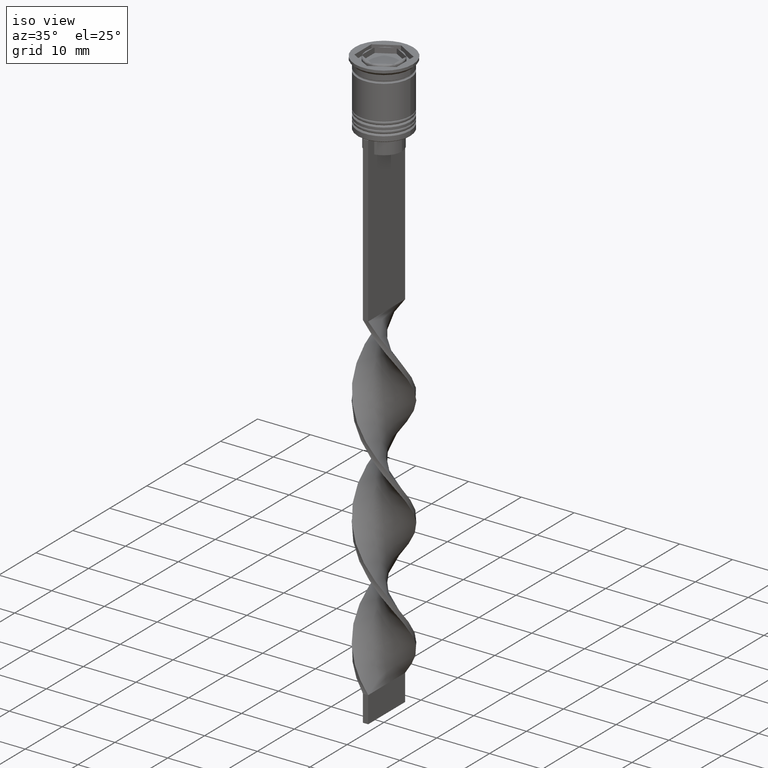
[diagram: clean part render]
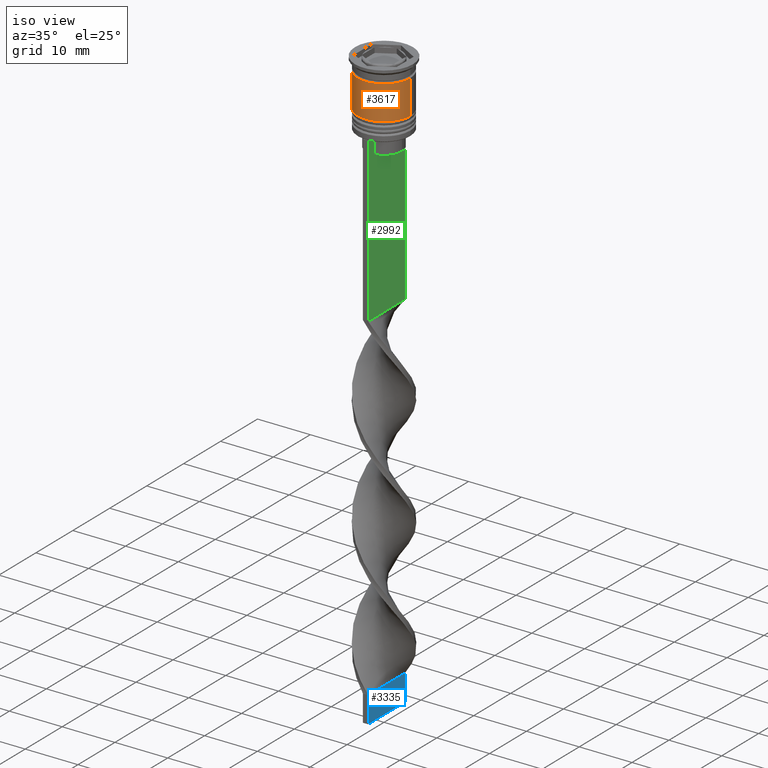
[diagram: same view with three faces highlighted in distinct colors, each labeled with its STEP entity id]
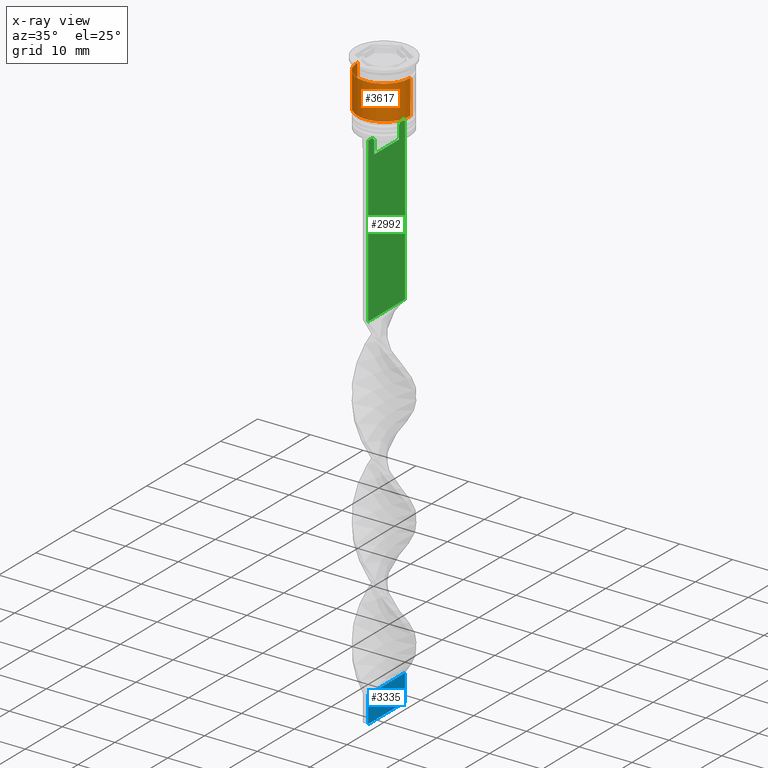
[diagram: x-ray of the same camera — body ghosted, the three highlighted faces saturated]
A machine part, iso view with three faces highlighted in distinct colors.
The next image is the same camera in x-ray (body ghosted, the three faces saturated) — at least one of them is partly hidden behind the body in this view.
Their STEP definitions:

[orange] entity #3617 — the highlighted cylindrical surface (edge-blend (fillet) strip) has radius 5 mm, axis along (-0, -0, 1).
#20 = AXIS2_PLACEMENT_3D ( 'NONE', #622, #349, #1485 ) ;
#21 = CARTESIAN_POINT ( 'NONE',  ( 0.000000000000000000, 0.000000000000000000, -9.000000000000001776 ) ) ;
#48 = CIRCLE ( 'NONE', #3082, 5.000000000000000888 ) ;
#119 = VERTEX_POINT ( 'NONE', #2237 ) ;
#310 = CIRCLE ( 'NONE', #20, 4.999999999999999112 ) ;
#349 = DIRECTION ( 'NONE',  ( -0.000000000000000000, -0.000000000000000000, 1.000000000000000000 ) ) ;
#367 = VECTOR ( 'NONE', #899, 1000.000000000000000 ) ;
#530 = DIRECTION ( 'NONE',  ( -0.000000000000000000, -0.000000000000000000, 1.000000000000000000 ) ) ;
#543 = LINE ( 'NONE', #2847, #367 ) ;
#545 = EDGE_CURVE ( 'NONE', #1499, #3250, #310, .T. ) ;
#563 = DIRECTION ( 'NONE',  ( 1.000000000000000000, 0.000000000000000000, 0.000000000000000000 ) ) ;
#622 = CARTESIAN_POINT ( 'NONE',  ( 0.000000000000000000, 0.000000000000000000, -2.500000000000000000 ) ) ;
#643 = EDGE_LOOP ( 'NONE', ( #2131, #2578, #2330, #1938 ) ) ;
#802 = CARTESIAN_POINT ( 'NONE',  ( 5.000000000000000888, 0.000000000000000000, -9.000000000000001776 ) ) ;
#878 = FACE_OUTER_BOUND ( 'NONE', #643, .T. ) ;
#899 = DIRECTION ( 'NONE',  ( -0.000000000000000000, -0.000000000000000000, 1.000000000000000000 ) ) ;
#999 = CARTESIAN_POINT ( 'NONE',  ( 4.999999999999999112, 0.000000000000000000, -2.500000000000000000 ) ) ;
#1013 = EDGE_CURVE ( 'NONE', #1340, #3250, #543, .T. ) ;
#1124 = CARTESIAN_POINT ( 'NONE',  ( -4.999999999999999112, 6.123233995736766282E-16, -2.500000000000000000 ) ) ;
#1290 = VECTOR ( 'NONE', #530, 1000.000000000000000 ) ;
#1294 = EDGE_CURVE ( 'NONE', #119, #1499, #1330, .T. ) ;
#1330 = LINE ( 'NONE', #3394, #1290 ) ;
#1340 = VERTEX_POINT ( 'NONE', #802 ) ;
#1475 = AXIS2_PLACEMENT_3D ( 'NONE', #2601, #1481, #3429 ) ;
#1481 = DIRECTION ( 'NONE',  ( -0.000000000000000000, -0.000000000000000000, 1.000000000000000000 ) ) ;
#1485 = DIRECTION ( 'NONE',  ( 1.000000000000000000, 0.000000000000000000, 0.000000000000000000 ) ) ;
#1499 = VERTEX_POINT ( 'NONE', #1124 ) ;
#1938 = ORIENTED_EDGE ( 'NONE', *, *, #545, .F. ) ;
#2131 = ORIENTED_EDGE ( 'NONE', *, *, #1294, .F. ) ;
#2237 = CARTESIAN_POINT ( 'NONE',  ( -5.000000000000000888, 6.123233995736767268E-16, -9.000000000000001776 ) ) ;
#2330 = ORIENTED_EDGE ( 'NONE', *, *, #1013, .T. ) ;
#2578 = ORIENTED_EDGE ( 'NONE', *, *, #2637, .T. ) ;
#2601 = CARTESIAN_POINT ( 'NONE',  ( 0.000000000000000000, 0.000000000000000000, 0.000000000000000000 ) ) ;
#2637 = EDGE_CURVE ( 'NONE', #119, #1340, #48, .T. ) ;
#2827 = DIRECTION ( 'NONE',  ( -0.000000000000000000, -0.000000000000000000, 1.000000000000000000 ) ) ;
#2847 = CARTESIAN_POINT ( 'NONE',  ( 5.000000000000000000, 0.000000000000000000, 0.000000000000000000 ) ) ;
#3082 = AXIS2_PLACEMENT_3D ( 'NONE', #21, #2827, #563 ) ;
#3173 = CYLINDRICAL_SURFACE ( 'NONE', #1475, 5.000000000000000000 ) ;
#3250 = VERTEX_POINT ( 'NONE', #999 ) ;
#3394 = CARTESIAN_POINT ( 'NONE',  ( -5.000000000000000000, 6.123233995736766282E-16, 0.000000000000000000 ) ) ;
#3429 = DIRECTION ( 'NONE',  ( 1.000000000000000000, 0.000000000000000000, 0.000000000000000000 ) ) ;
#3617 = ADVANCED_FACE ( 'NONE', ( #878 ), #3173, .T. ) ;

[blue] entity #3335 — the highlighted planar face has unit normal (-1, 0, 0).
#127 = EDGE_CURVE ( 'NONE', #2539, #2445, #1893, .T. ) ;
#189 = ORIENTED_EDGE ( 'NONE', *, *, #281, .T. ) ;
#247 = DIRECTION ( 'NONE',  ( -1.000000000000000000, 1.301042606982605321E-16, 0.000000000000000000 ) ) ;
#259 = CARTESIAN_POINT ( 'NONE',  ( 0.4999999999999993339, -5.000000000000000888, -112.5000000000000000 ) ) ;
#281 = EDGE_CURVE ( 'NONE', #2539, #1031, #3440, .T. ) ;
#749 = CARTESIAN_POINT ( 'NONE',  ( 0.5000000000000006661, 4.999999999999999112, -107.5000000000000000 ) ) ;
#762 = CARTESIAN_POINT ( 'NONE',  ( 0.5000000000000006661, 4.999999999999999112, -112.5000000000000000 ) ) ;
#799 = AXIS2_PLACEMENT_3D ( 'NONE', #3071, #247, #3350 ) ;
#981 = ORIENTED_EDGE ( 'NONE', *, *, #2103, .T. ) ;
#1031 = VERTEX_POINT ( 'NONE', #1119 ) ;
#1033 = FACE_OUTER_BOUND ( 'NONE', #3449, .T. ) ;
#1119 = CARTESIAN_POINT ( 'NONE',  ( 0.5000000000000006661, 4.999999999999999112, -107.5000000000000000 ) ) ;
#1394 = DIRECTION ( 'NONE',  ( -0.000000000000000000, -0.000000000000000000, 1.000000000000000000 ) ) ;
#1447 = DIRECTION ( 'NONE',  ( -0.000000000000000000, -0.000000000000000000, 1.000000000000000000 ) ) ;
#1601 = ORIENTED_EDGE ( 'NONE', *, *, #2291, .F. ) ;
#1769 = CARTESIAN_POINT ( 'NONE',  ( 0.5000000000000006661, 4.999999999999999112, -112.5000000000000000 ) ) ;
#1893 = LINE ( 'NONE', #762, #1906 ) ;
#1898 = CARTESIAN_POINT ( 'NONE',  ( 0.5000000000000002220, 1.666666666666666075, -107.5000000000000000 ) ) ;
#1906 = VECTOR ( 'NONE', #3318, 1000.000000000000000 ) ;
#1937 = VECTOR ( 'NONE', #1394, 1000.000000000000000 ) ;
#1953 = CARTESIAN_POINT ( 'NONE',  ( 0.4999999999999993339, -5.000000000000000888, -112.5000000000000000 ) ) ;
#2103 = EDGE_CURVE ( 'NONE', #1031, #3098, #3551, .T. ) ;
#2171 = CARTESIAN_POINT ( 'NONE',  ( 0.5000000000000006661, 4.999999999999999112, -112.5000000000000000 ) ) ;
#2291 = EDGE_CURVE ( 'NONE', #2445, #3098, #2817, .T. ) ;
#2445 = VERTEX_POINT ( 'NONE', #1953 ) ;
#2514 = VECTOR ( 'NONE', #1447, 1000.000000000000000 ) ;
#2539 = VERTEX_POINT ( 'NONE', #2171 ) ;
#2720 = CARTESIAN_POINT ( 'NONE',  ( 0.4999999999999993339, -5.000000000000000888, -107.5000000000000000 ) ) ;
#2817 = LINE ( 'NONE', #259, #1937 ) ;
#2872 = ORIENTED_EDGE ( 'NONE', *, *, #127, .F. ) ;
#3005 = CARTESIAN_POINT ( 'NONE',  ( 0.4999999999999997780, -1.666666666666667851, -107.5000000000000000 ) ) ;
#3071 = CARTESIAN_POINT ( 'NONE',  ( 0.5000000000000006661, 4.999999999999999112, -112.5000000000000000 ) ) ;
#3098 = VERTEX_POINT ( 'NONE', #2720 ) ;
#3318 = DIRECTION ( 'NONE',  ( -1.301042606982605321E-16, -1.000000000000000000, 0.000000000000000000 ) ) ;
#3335 = ADVANCED_FACE ( 'NONE', ( #1033 ), #3677, .F. ) ;
#3350 = DIRECTION ( 'NONE',  ( -1.301042606982605321E-16, -1.000000000000000000, 0.000000000000000000 ) ) ;
#3440 = LINE ( 'NONE', #1769, #2514 ) ;
#3449 = EDGE_LOOP ( 'NONE', ( #981, #1601, #2872, #189 ) ) ;
#3551 = B_SPLINE_CURVE_WITH_KNOTS ( 'NONE', 3,
 ( #749, #1898, #3005, #3634 ),
 .UNSPECIFIED., .F., .F.,
 ( 4, 4 ),
 ( 0.000000000000000000, 1.000000000000000000 ),
 .UNSPECIFIED. ) ;
#3634 = CARTESIAN_POINT ( 'NONE',  ( 0.4999999999999993339, -5.000000000000000888, -107.5000000000000000 ) ) ;
#3677 = PLANE ( 'NONE',  #799 ) ;

[green] entity #2992 — the highlighted planar face has unit normal (-1, 0, 0).
#36 = EDGE_CURVE ( 'NONE', #843, #3000, #1703, .T. ) ;
#88 = VERTEX_POINT ( 'NONE', #3376 ) ;
#111 = VERTEX_POINT ( 'NONE', #3648 ) ;
#257 = CARTESIAN_POINT ( 'NONE',  ( 0.5000000000000000000, -4.999999999999999112, -2.450124378879110054 ) ) ;
#280 = LINE ( 'NONE', #1635, #873 ) ;
#295 = CARTESIAN_POINT ( 'NONE',  ( 0.5000000000000000000, 5.000000000000000888, -12.50000000000000000 ) ) ;
#345 = DIRECTION ( 'NONE',  ( 0.000000000000000000, -1.000000000000000000, 0.000000000000000000 ) ) ;
#353 = VERTEX_POINT ( 'NONE', #295 ) ;
#493 = ORIENTED_EDGE ( 'NONE', *, *, #1556, .T. ) ;
#501 = CARTESIAN_POINT ( 'NONE',  ( 0.5000000000000000000, -3.363034344160045208, -13.00000000000000178 ) ) ;
#566 = CARTESIAN_POINT ( 'NONE',  ( 0.5000000000000000000, -4.999999999999999112, -12.50000000000000000 ) ) ;
#618 = ORIENTED_EDGE ( 'NONE', *, *, #812, .F. ) ;
#637 = CARTESIAN_POINT ( 'NONE',  ( 0.5000000000000000000, -3.363034344160045652, -15.50000000000000000 ) ) ;
#685 = CARTESIAN_POINT ( 'NONE',  ( 0.5000000000000000000, 3.867815921162742754, -12.50000000000000000 ) ) ;
#692 = VECTOR ( 'NONE', #2630, 1000.000000000000000 ) ;
#719 = EDGE_CURVE ( 'NONE', #1076, #3525, #3403, .T. ) ;
#726 = ORIENTED_EDGE ( 'NONE', *, *, #2170, .T. ) ;
#734 = VECTOR ( 'NONE', #3157, 1000.000000000000000 ) ;
#768 = FACE_OUTER_BOUND ( 'NONE', #795, .T. ) ;
#795 = EDGE_LOOP ( 'NONE', ( #493, #1448, #3606, #726, #2675, #1823, #2149, #2460, #2927, #3629, #618, #3229 ) ) ;
#812 = EDGE_CURVE ( 'NONE', #353, #1661, #892, .T. ) ;
#816 = DIRECTION ( 'NONE',  ( 0.000000000000000000, 0.000000000000000000, -1.000000000000000000 ) ) ;
#832 = EDGE_CURVE ( 'NONE', #3398, #111, #2620, .T. ) ;
#843 = VERTEX_POINT ( 'NONE', #3187 ) ;
#857 = LINE ( 'NONE', #2850, #734 ) ;
#862 = VECTOR ( 'NONE', #3434, 1000.000000000000000 ) ;
#872 = DIRECTION ( 'NONE',  ( 0.000000000000000000, 0.000000000000000000, -1.000000000000000000 ) ) ;
#873 = VECTOR ( 'NONE', #3065, 1000.000000000000000 ) ;
#892 = LINE ( 'NONE', #1491, #2515 ) ;
#956 = VECTOR ( 'NONE', #1092, 1000.000000000000000 ) ;
#1062 = EDGE_CURVE ( 'NONE', #353, #2477, #1702, .T. ) ;
#1069 = DIRECTION ( 'NONE',  ( 0.000000000000000000, 0.000000000000000000, -1.000000000000000000 ) ) ;
#1076 = VERTEX_POINT ( 'NONE', #2046 ) ;
#1092 = DIRECTION ( 'NONE',  ( 0.000000000000000000, -1.000000000000000000, 0.000000000000000000 ) ) ;
#1122 = B_SPLINE_CURVE_WITH_KNOTS ( 'NONE', 3,
 ( #685, #3288, #3325, #3580 ),
 .UNSPECIFIED., .F., .F.,
 ( 4, 4 ),
 ( 0.006644825462451552783, 0.007355321358912435097 ),
 .UNSPECIFIED. ) ;
#1129 = CARTESIAN_POINT ( 'NONE',  ( 0.5000000000000000000, -3.363034344160045208, -13.00000000000000178 ) ) ;
#1194 = CARTESIAN_POINT ( 'NONE',  ( 0.5000000000000000000, -3.531412985305424801, -12.83345201382502765 ) ) ;
#1199 = VECTOR ( 'NONE', #816, 1000.000000000000000 ) ;
#1253 = EDGE_CURVE ( 'NONE', #1904, #3398, #2902, .T. ) ;
#1401 = CARTESIAN_POINT ( 'NONE',  ( 0.5000000000000000000, -4.999999999999999112, -12.50000000000000000 ) ) ;
#1448 = ORIENTED_EDGE ( 'NONE', *, *, #2086, .T. ) ;
#1453 = CARTESIAN_POINT ( 'NONE',  ( 0.5000000000000000000, -3.867815921162742754, -12.50000000000000000 ) ) ;
#1484 = CARTESIAN_POINT ( 'NONE',  ( 0.5000000000000000000, -3.363034344160045208, 0.000000000000000000 ) ) ;
#1491 = CARTESIAN_POINT ( 'NONE',  ( 0.5000000000000000000, 5.000000000000000888, -2.450124378879110054 ) ) ;
#1556 = EDGE_CURVE ( 'NONE', #2477, #2947, #3437, .T. ) ;
#1599 = DIRECTION ( 'NONE',  ( -1.000000000000000000, 0.000000000000000000, 0.000000000000000000 ) ) ;
#1633 = CARTESIAN_POINT ( 'NONE',  ( 0.5000000000000000000, 4.874423042781575788, -12.50000000000000000 ) ) ;
#1635 = CARTESIAN_POINT ( 'NONE',  ( 0.5000000000000000000, 3.399999999999998135, -15.50000000000000000 ) ) ;
#1661 = VERTEX_POINT ( 'NONE', #3616 ) ;
#1702 = LINE ( 'NONE', #1401, #1853 ) ;
#1703 = LINE ( 'NONE', #3432, #1199 ) ;
#1719 = CARTESIAN_POINT ( 'NONE',  ( 0.5000000000000000000, -3.699658232838647365, -12.66676999593996555 ) ) ;
#1823 = ORIENTED_EDGE ( 'NONE', *, *, #832, .T. ) ;
#1853 = VECTOR ( 'NONE', #345, 1000.000000000000000 ) ;
#1897 = CARTESIAN_POINT ( 'NONE',  ( 0.5000000000000000000, 3.867815921162742754, -12.50000000000000000 ) ) ;
#1904 = VERTEX_POINT ( 'NONE', #637 ) ;
#1960 = CARTESIAN_POINT ( 'NONE',  ( 0.5000000000000000000, -4.999999999999999112, -12.50000000000000000 ) ) ;
#2009 = LINE ( 'NONE', #2255, #862 ) ;
#2046 = CARTESIAN_POINT ( 'NONE',  ( 0.5000000000000000000, -4.874423042781575788, -12.50000000000000000 ) ) ;
#2086 = EDGE_CURVE ( 'NONE', #2947, #843, #1122, .T. ) ;
#2147 = CARTESIAN_POINT ( 'NONE',  ( 0.5000000000000000000, -4.999999999999999112, -2.450124378879110054 ) ) ;
#2149 = ORIENTED_EDGE ( 'NONE', *, *, #2632, .T. ) ;
#2170 = EDGE_CURVE ( 'NONE', #3000, #1904, #280, .T. ) ;
#2202 = CARTESIAN_POINT ( 'NONE',  ( 0.5000000000000000000, 3.363034344160045652, -15.50000000000000000 ) ) ;
#2255 = CARTESIAN_POINT ( 'NONE',  ( 0.5000000000000000000, -4.999999999999999112, -12.50000000000000000 ) ) ;
#2403 = EDGE_CURVE ( 'NONE', #3525, #88, #2814, .T. ) ;
#2460 = ORIENTED_EDGE ( 'NONE', *, *, #719, .T. ) ;
#2463 = DIRECTION ( 'NONE',  ( 0.000000000000000000, 0.000000000000000000, 1.000000000000000000 ) ) ;
#2477 = VERTEX_POINT ( 'NONE', #1633 ) ;
#2515 = VECTOR ( 'NONE', #872, 1000.000000000000000 ) ;
#2620 = B_SPLINE_CURVE_WITH_KNOTS ( 'NONE', 3,
 ( #1129, #1194, #1719, #1453 ),
 .UNSPECIFIED., .F., .F.,
 ( 4, 4 ),
 ( 0.01632394437298965648, 0.01703543518243618576 ),
 .UNSPECIFIED. ) ;
#2630 = DIRECTION ( 'NONE',  ( -0.000000000000000000, -0.000000000000000000, 1.000000000000000000 ) ) ;
#2632 = EDGE_CURVE ( 'NONE', #111, #1076, #2009, .T. ) ;
#2661 = EDGE_CURVE ( 'NONE', #88, #1661, #857, .T. ) ;
#2675 = ORIENTED_EDGE ( 'NONE', *, *, #1253, .T. ) ;
#2719 = AXIS2_PLACEMENT_3D ( 'NONE', #2147, #1599, #2463 ) ;
#2759 = PLANE ( 'NONE',  #2719 ) ;
#2814 = LINE ( 'NONE', #257, #3210 ) ;
#2850 = CARTESIAN_POINT ( 'NONE',  ( 0.5000000000000000000, -4.999999999999999112, -43.50000000000000000 ) ) ;
#2902 = LINE ( 'NONE', #1484, #692 ) ;
#2927 = ORIENTED_EDGE ( 'NONE', *, *, #2403, .T. ) ;
#2947 = VERTEX_POINT ( 'NONE', #1897 ) ;
#2992 = ADVANCED_FACE ( 'NONE', ( #768 ), #2759, .F. ) ;
#3000 = VERTEX_POINT ( 'NONE', #2202 ) ;
#3065 = DIRECTION ( 'NONE',  ( 0.000000000000000000, -1.000000000000000000, 0.000000000000000000 ) ) ;
#3157 = DIRECTION ( 'NONE',  ( 0.000000000000000000, 1.000000000000000000, 0.000000000000000000 ) ) ;
#3187 = CARTESIAN_POINT ( 'NONE',  ( 0.5000000000000000000, 3.363034344160045208, -13.00000000000000178 ) ) ;
#3210 = VECTOR ( 'NONE', #1069, 1000.000000000000000 ) ;
#3217 = DIRECTION ( 'NONE',  ( 0.000000000000000000, -1.000000000000000000, 0.000000000000000000 ) ) ;
#3229 = ORIENTED_EDGE ( 'NONE', *, *, #1062, .T. ) ;
#3288 = CARTESIAN_POINT ( 'NONE',  ( 0.5000000000000000000, 3.699657965831574913, -12.66677026074361301 ) ) ;
#3325 = CARTESIAN_POINT ( 'NONE',  ( 0.5000000000000000000, 3.531412678228260216, -12.83345231756357840 ) ) ;
#3376 = CARTESIAN_POINT ( 'NONE',  ( 0.5000000000000000000, -4.999999999999999112, -43.50000000000000000 ) ) ;
#3398 = VERTEX_POINT ( 'NONE', #501 ) ;
#3403 = LINE ( 'NONE', #3635, #956 ) ;
#3432 = CARTESIAN_POINT ( 'NONE',  ( 0.5000000000000000000, 3.363034344160045208, 0.000000000000000000 ) ) ;
#3434 = DIRECTION ( 'NONE',  ( 0.000000000000000000, -1.000000000000000000, 0.000000000000000000 ) ) ;
#3437 = LINE ( 'NONE', #566, #3693 ) ;
#3525 = VERTEX_POINT ( 'NONE', #1960 ) ;
#3580 = CARTESIAN_POINT ( 'NONE',  ( 0.5000000000000000000, 3.363034344160045208, -13.00000000000000178 ) ) ;
#3606 = ORIENTED_EDGE ( 'NONE', *, *, #36, .T. ) ;
#3616 = CARTESIAN_POINT ( 'NONE',  ( 0.5000000000000000000, 5.000000000000000888, -43.50000000000000000 ) ) ;
#3629 = ORIENTED_EDGE ( 'NONE', *, *, #2661, .T. ) ;
#3635 = CARTESIAN_POINT ( 'NONE',  ( 0.5000000000000000000, -4.999999999999999112, -12.50000000000000000 ) ) ;
#3648 = CARTESIAN_POINT ( 'NONE',  ( 0.5000000000000000000, -3.867815921162742754, -12.50000000000000000 ) ) ;
#3693 = VECTOR ( 'NONE', #3217, 1000.000000000000000 ) ;